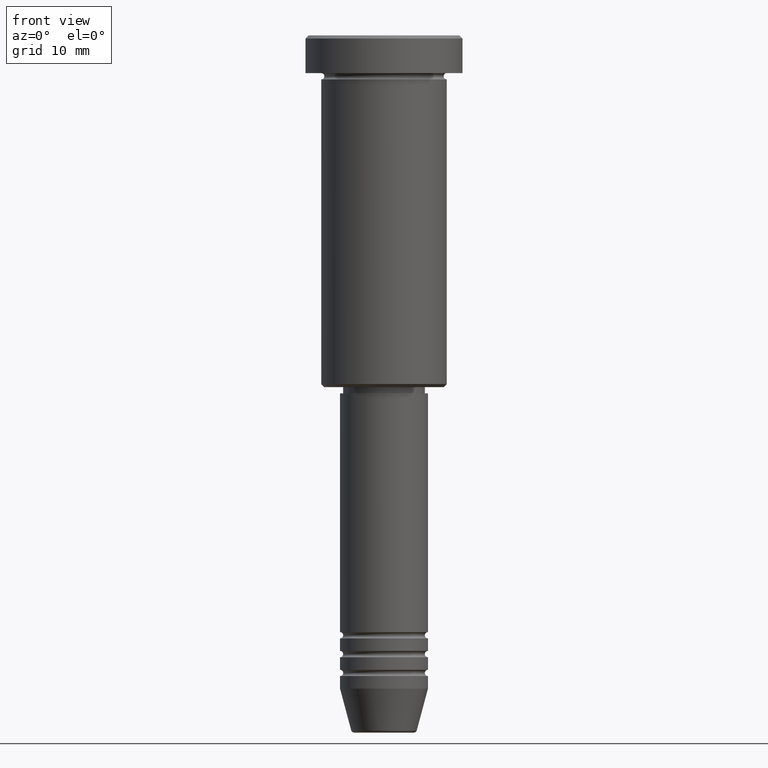
[diagram: clean part render]
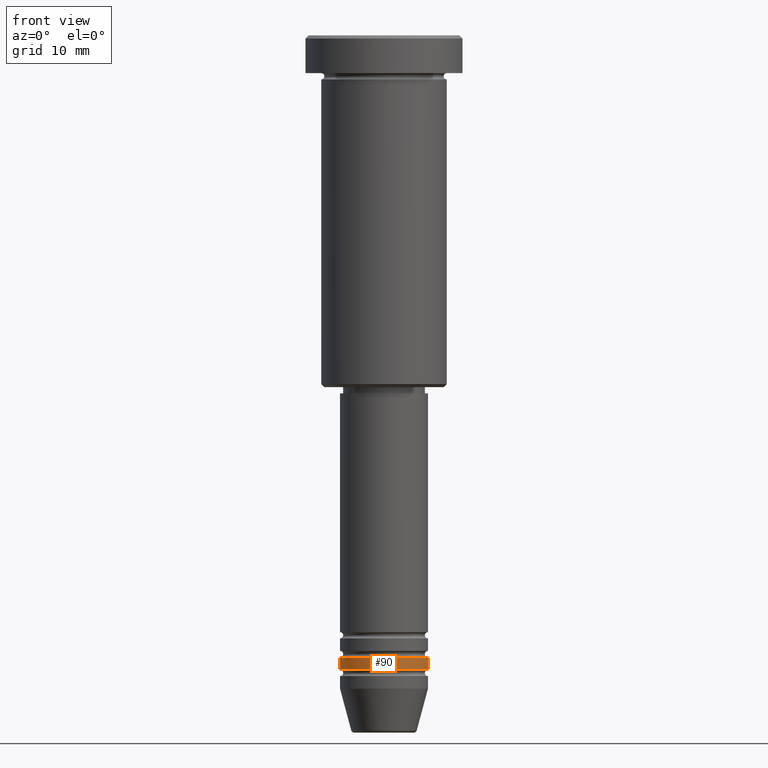
[diagram: same view with one face highlighted and labeled with its STEP entity id]
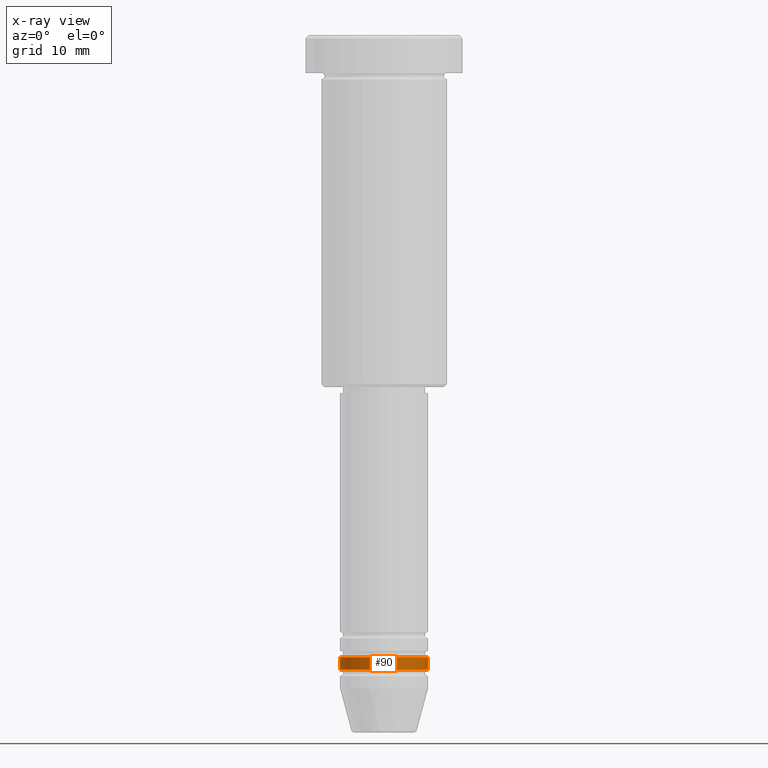
[diagram: x-ray of the same camera — body ghosted, the highlighted face saturated]
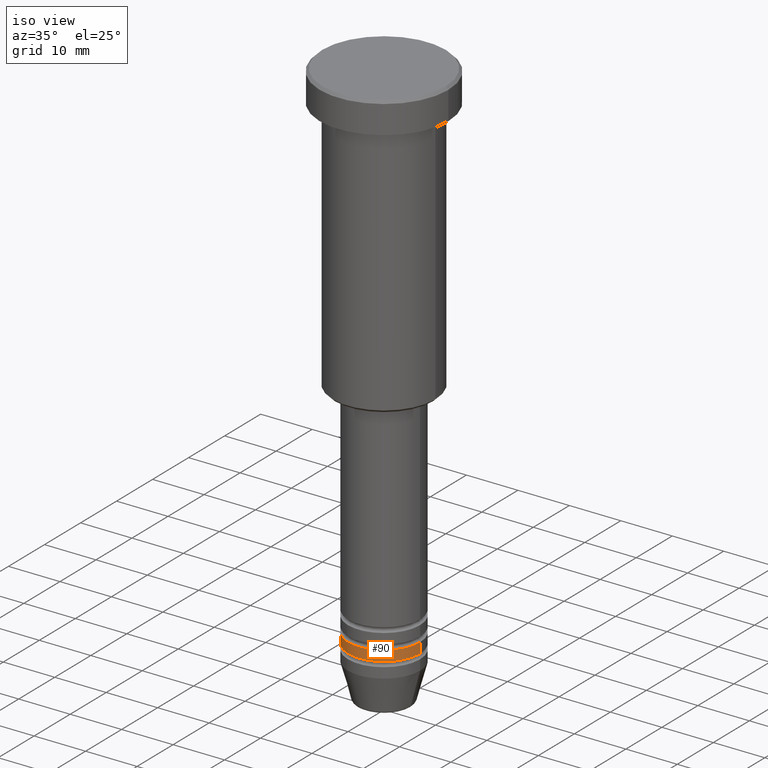
[diagram: same view with one face highlighted and labeled with its STEP entity id]
A machine part, front view. The second image highlights one B-rep face of the part: STEP entity #90.
The next image is the same camera in x-ray: the body ghosted, the highlighted face saturated — about 0% of this face is hidden behind the body in this view.
A second angle (iso view) of the same face is appended — the face is thin or edge-on in the first view.
In plain terms, the highlighted cylindrical surface (partial cylindrical patch) has radius 7 mm, axis along (-0, -0, 1).
Its self-contained STEP definition (entity closure, byte-faithful):
#20 = DIRECTION ( 'NONE',  ( 1.000000000000000000, 0.000000000000000000, 0.000000000000000000 ) ) ;
#68 = LINE ( 'NONE', #1168, #415 ) ;
#72 = VERTEX_POINT ( 'NONE', #716 ) ;
#90 = ADVANCED_FACE ( 'NONE', ( #807 ), #1079, .T. ) ;
#107 = CARTESIAN_POINT ( 'NONE',  ( 7.000000000000000000, 0.000000000000000000, -98.99999999999998579 ) ) ;
#127 = EDGE_LOOP ( 'NONE', ( #940, #709, #278, #947 ) ) ;
#183 = AXIS2_PLACEMENT_3D ( 'NONE', #649, #654, #387 ) ;
#219 = VERTEX_POINT ( 'NONE', #651 ) ;
#271 = LINE ( 'NONE', #276, #489 ) ;
#276 = CARTESIAN_POINT ( 'NONE',  ( 7.000000000000000000, 0.000000000000000000, 0.000000000000000000 ) ) ;
#278 = ORIENTED_EDGE ( 'NONE', *, *, #707, .T. ) ;
#334 = AXIS2_PLACEMENT_3D ( 'NONE', #440, #1177, #984 ) ;
#365 = CARTESIAN_POINT ( 'NONE',  ( 0.000000000000000000, 0.000000000000000000, -98.99999999999998579 ) ) ;
#387 = DIRECTION ( 'NONE',  ( 1.000000000000000000, 0.000000000000000000, 0.000000000000000000 ) ) ;
#415 = VECTOR ( 'NONE', #1072, 1000.000000000000000 ) ;
#440 = CARTESIAN_POINT ( 'NONE',  ( 0.000000000000000000, 0.000000000000000000, 0.000000000000000000 ) ) ;
#453 = CIRCLE ( 'NONE', #993, 7.000000000000000000 ) ;
#481 = DIRECTION ( 'NONE',  ( -0.000000000000000000, -0.000000000000000000, 1.000000000000000000 ) ) ;
#489 = VECTOR ( 'NONE', #635, 1000.000000000000000 ) ;
#617 = EDGE_CURVE ( 'NONE', #219, #1005, #453, .T. ) ;
#635 = DIRECTION ( 'NONE',  ( -0.000000000000000000, -0.000000000000000000, 1.000000000000000000 ) ) ;
#649 = CARTESIAN_POINT ( 'NONE',  ( 0.000000000000000000, 0.000000000000000000, -100.9999999999999716 ) ) ;
#651 = CARTESIAN_POINT ( 'NONE',  ( -7.000000000000000000, 8.572527594031473190E-16, -98.99999999999998579 ) ) ;
#654 = DIRECTION ( 'NONE',  ( -0.000000000000000000, -0.000000000000000000, 1.000000000000000000 ) ) ;
#707 = EDGE_CURVE ( 'NONE', #1162, #1005, #271, .T. ) ;
#709 = ORIENTED_EDGE ( 'NONE', *, *, #1105, .T. ) ;
#716 = CARTESIAN_POINT ( 'NONE',  ( -7.000000000000000000, 8.572527594031473190E-16, -100.9999999999999716 ) ) ;
#807 = FACE_OUTER_BOUND ( 'NONE', #127, .T. ) ;
#940 = ORIENTED_EDGE ( 'NONE', *, *, #982, .F. ) ;
#947 = ORIENTED_EDGE ( 'NONE', *, *, #617, .F. ) ;
#982 = EDGE_CURVE ( 'NONE', #72, #219, #68, .T. ) ;
#984 = DIRECTION ( 'NONE',  ( 1.000000000000000000, 0.000000000000000000, 0.000000000000000000 ) ) ;
#993 = AXIS2_PLACEMENT_3D ( 'NONE', #365, #481, #20 ) ;
#1005 = VERTEX_POINT ( 'NONE', #107 ) ;
#1072 = DIRECTION ( 'NONE',  ( -0.000000000000000000, -0.000000000000000000, 1.000000000000000000 ) ) ;
#1079 = CYLINDRICAL_SURFACE ( 'NONE', #334, 7.000000000000000000 ) ;
#1094 = CIRCLE ( 'NONE', #183, 7.000000000000000000 ) ;
#1101 = CARTESIAN_POINT ( 'NONE',  ( 7.000000000000000000, 0.000000000000000000, -100.9999999999999716 ) ) ;
#1105 = EDGE_CURVE ( 'NONE', #72, #1162, #1094, .T. ) ;
#1162 = VERTEX_POINT ( 'NONE', #1101 ) ;
#1168 = CARTESIAN_POINT ( 'NONE',  ( -7.000000000000000000, 8.572527594031473190E-16, 0.000000000000000000 ) ) ;
#1177 = DIRECTION ( 'NONE',  ( -0.000000000000000000, -0.000000000000000000, 1.000000000000000000 ) ) ;